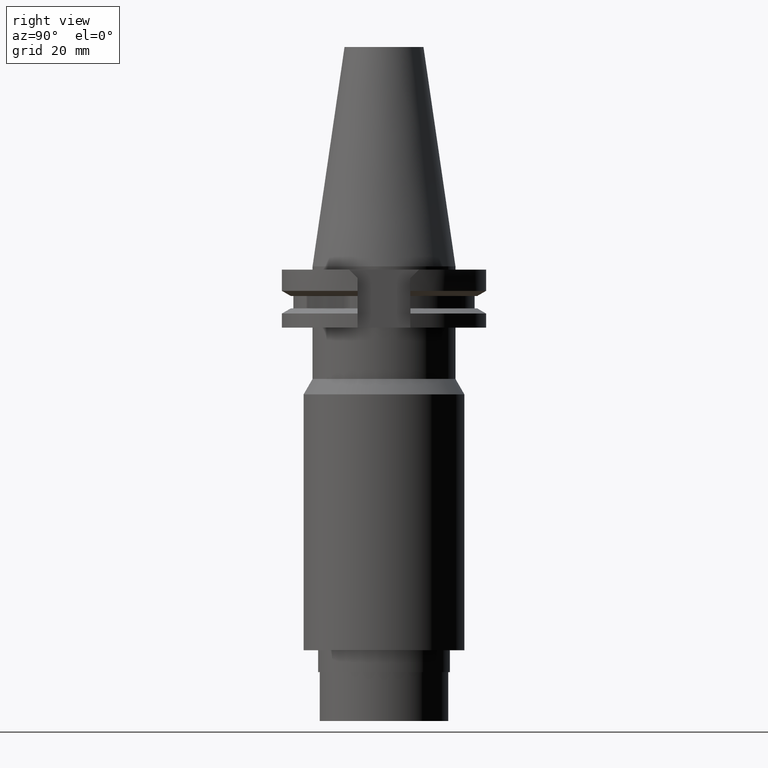
[diagram: clean part render]
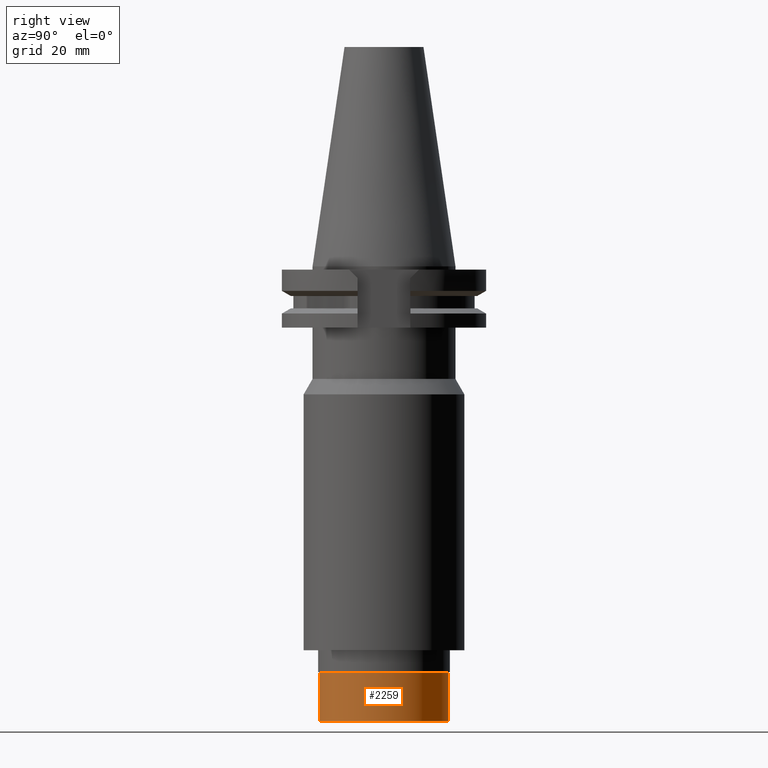
[diagram: same view with one face highlighted and labeled with its STEP entity id]
A machine part, right view. The second image highlights one B-rep face of the part: STEP entity #2259.
In plain terms, the highlighted cylindrical surface (partial cylindrical patch) has radius 20 mm, axis along (0, 0, -1).
Its self-contained STEP definition (entity closure, byte-faithful):
#992=CARTESIAN_POINT('',(0.E0,2.188841840286E-14,-1.262E2));
#993=DIRECTION('',(0.E0,0.E0,-1.E0));
#994=DIRECTION('',(0.E0,1.E0,0.E0));
#995=AXIS2_PLACEMENT_3D('',#992,#993,#994);
#1000=DIRECTION('',(0.E0,0.E0,-1.E0));
#1001=VECTOR('',#1000,1.52E1);
#1002=CARTESIAN_POINT('',(0.E0,-2.E1,-1.262E2));
#1003=LINE('',#1002,#1001);
#1007=DIRECTION('',(0.E0,0.E0,-1.E0));
#1008=VECTOR('',#1007,1.52E1);
#1009=CARTESIAN_POINT('',(0.E0,2.E1,-1.262E2));
#1010=LINE('',#1009,#1008);
#1014=CARTESIAN_POINT('',(0.E0,2.188841840286E-14,-1.414E2));
#1015=DIRECTION('',(0.E0,0.E0,1.E0));
#1016=DIRECTION('',(0.E0,-1.E0,0.E0));
#1017=AXIS2_PLACEMENT_3D('',#1014,#1015,#1016);
#1322=CARTESIAN_POINT('',(0.E0,-2.E1,-1.414E2));
#1323=CARTESIAN_POINT('',(0.E0,2.E1,-1.414E2));
#1324=VERTEX_POINT('',#1322);
#1325=VERTEX_POINT('',#1323);
#1326=CARTESIAN_POINT('',(0.E0,2.E1,-1.262E2));
#1327=VERTEX_POINT('',#1326);
#1328=CARTESIAN_POINT('',(0.E0,-2.E1,-1.262E2));
#1329=VERTEX_POINT('',#1328);
#2247=CARTESIAN_POINT('',(0.E0,2.188841840286E-14,7.87325E1));
#2248=DIRECTION('',(0.E0,0.E0,-1.E0));
#2249=DIRECTION('',(0.E0,-1.E0,0.E0));
#2250=AXIS2_PLACEMENT_3D('',#2247,#2248,#2249);
#2251=CYLINDRICAL_SURFACE('',#2250,2.E1);
#2252=ORIENTED_EDGE('',*,*,#2237,.T.);
#2254=ORIENTED_EDGE('',*,*,#2253,.F.);
#2255=ORIENTED_EDGE('',*,*,#2240,.F.);
#2256=ORIENTED_EDGE('',*,*,#2227,.F.);
#2257=EDGE_LOOP('',(#2252,#2254,#2255,#2256));
#2258=FACE_OUTER_BOUND('',#2257,.F.);
#996=CIRCLE('',#995,2.E1);
#1018=CIRCLE('',#1017,2.E1);
#2227=EDGE_CURVE('',#1327,#1329,#996,.T.);
#2237=EDGE_CURVE('',#1327,#1325,#1010,.T.);
#2240=EDGE_CURVE('',#1329,#1324,#1003,.T.);
#2253=EDGE_CURVE('',#1324,#1325,#1018,.T.);
#2259=ADVANCED_FACE('',(#2258),#2251,.T.);